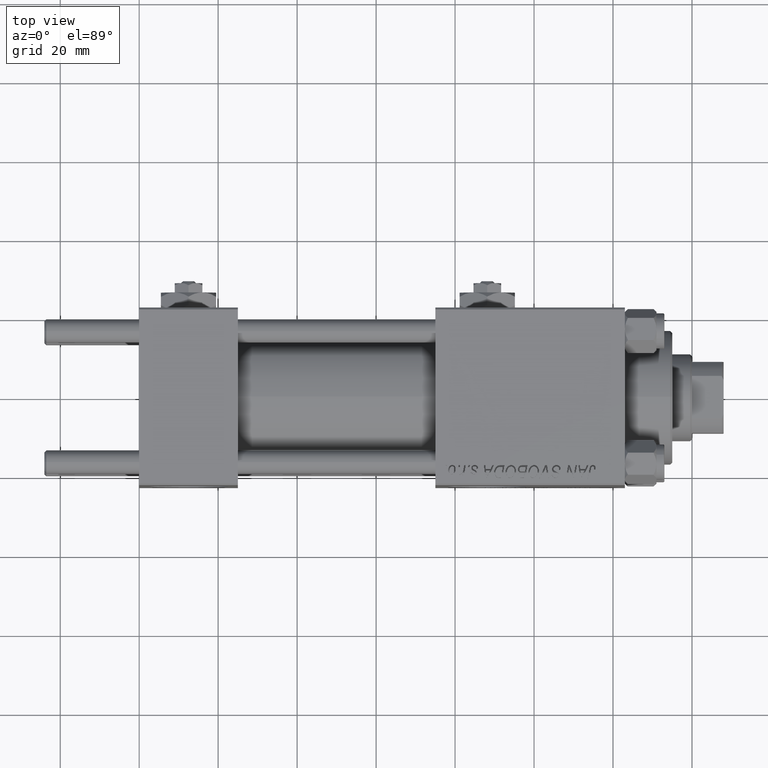
[diagram: clean part render]
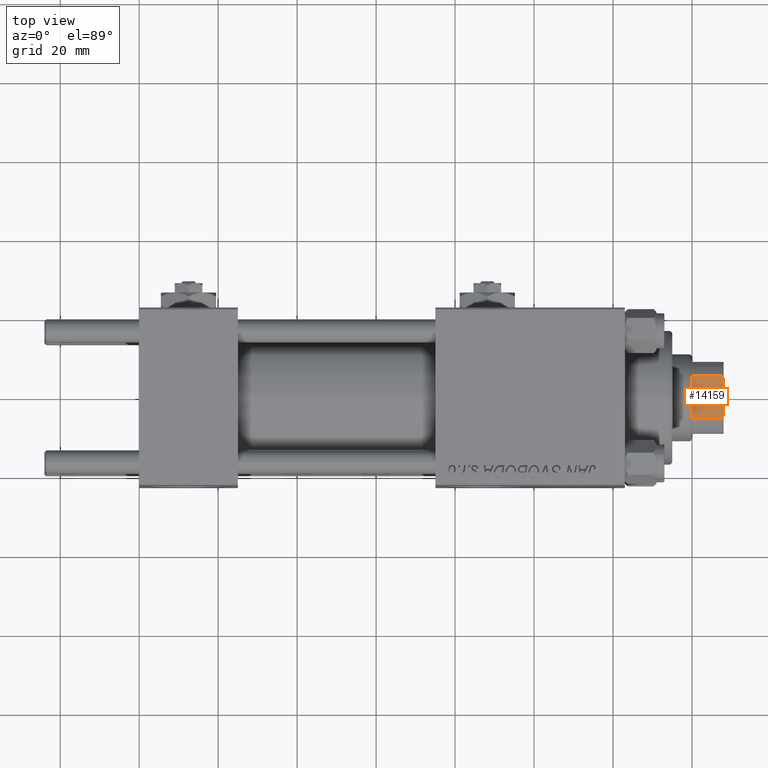
[diagram: same view with one face highlighted and labeled with its STEP entity id]
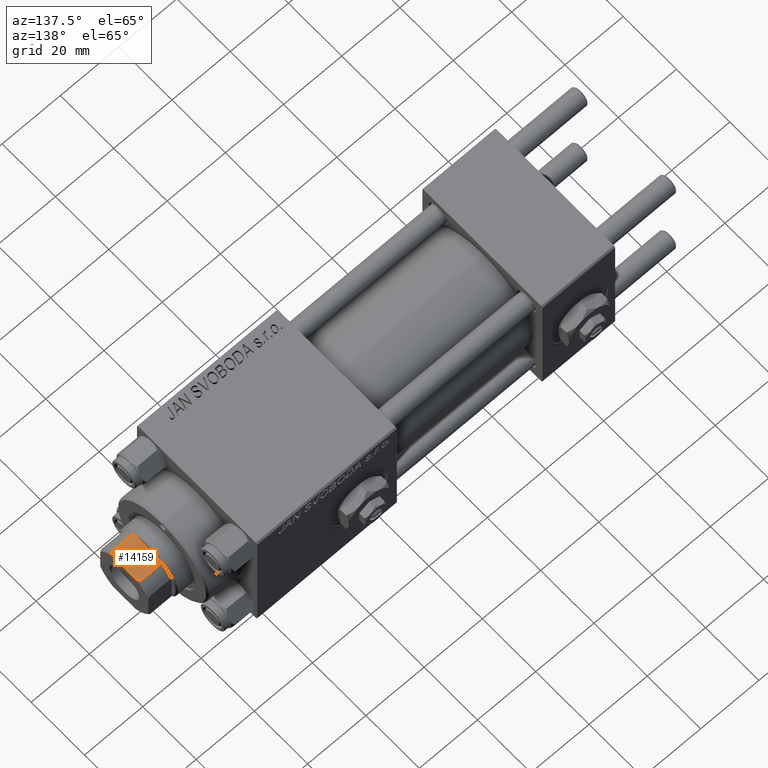
[diagram: same view with one face highlighted and labeled with its STEP entity id]
A machine part, top view. The second image highlights one B-rep face of the part: STEP entity #14159.
A second angle (auxiliary view) of the same face is appended — the face is thin or edge-on in the first view.
In plain terms, the highlighted planar face has unit normal (-0, 0, -1).
Its self-contained STEP definition (entity closure, byte-faithful):
#1874 = CARTESIAN_POINT ( 'NONE',  ( -5.408326913195988794, -8.999999999999998224, 115.0000000000000284 ) ) ;
#3432 = FACE_OUTER_BOUND ( 'NONE', #39912, .T. ) ;
#3558 = CARTESIAN_POINT ( 'NONE',  ( 5.408326913195988794, -8.999999999999998224, 115.0000000000000284 ) ) ;
#4514 = CARTESIAN_POINT ( 'NONE',  ( 4.358898943540667759, -9.000000000000001776, 123.0000000000000000 ) ) ;
#5613 = CARTESIAN_POINT ( 'NONE',  ( -4.358898943540667759, -9.000000000000001776, 123.0000000000000000 ) ) ;
#5825 = VECTOR ( 'NONE', #43112, 1000.000000000000000 ) ;
#5988 = CARTESIAN_POINT ( 'NONE',  ( -5.408326913195988794, -8.999999999999998224, 122.5000000000000000 ) ) ;
#6361 = ORIENTED_EDGE ( 'NONE', *, *, #12108, .F. ) ;
#7642 = DIRECTION ( 'NONE',  ( 0.000000000000000000, -0.000000000000000000, 1.000000000000000000 ) ) ;
#7706 = DIRECTION ( 'NONE',  ( 1.000000000000000000, 0.000000000000000000, 0.000000000000000000 ) ) ;
#9568 = EDGE_CURVE ( 'NONE', #40176, #12343, #10073, .T. ) ;
#10073 = LINE ( 'NONE', #25589, #43547 ) ;
#11038 = LINE ( 'NONE', #27066, #5825 ) ;
#11117 = CARTESIAN_POINT ( 'NONE',  ( -9.000000000000001776, -9.000000000000001776, 115.0000000000000000 ) ) ;
#11395 = CARTESIAN_POINT ( 'NONE',  ( -9.000000000000001776, -9.000000000000001776, 123.0000000000000000 ) ) ;
#12108 = EDGE_CURVE ( 'NONE', #29313, #23044, #11038, .T. ) ;
#12343 = VERTEX_POINT ( 'NONE', #19375 ) ;
#13591 = DIRECTION ( 'NONE',  ( 1.000000000000000000, 0.000000000000000000, 0.000000000000000000 ) ) ;
#13995 = CARTESIAN_POINT ( 'NONE',  ( 4.714305797500245809, -9.000000000000001776, 122.8450817439748448 ) ) ;
#14159 = ADVANCED_FACE ( 'NONE', ( #3432 ), #44187, .F. ) ;
#14592 = ORIENTED_EDGE ( 'NONE', *, *, #50087, .T. ) ;
#16099 = LINE ( 'NONE', #11117, #31214 ) ;
#19375 = CARTESIAN_POINT ( 'NONE',  ( 5.408326913195988794, -8.999999999999998224, 122.5000000000000000 ) ) ;
#20453 = VERTEX_POINT ( 'NONE', #5613 ) ;
#20990 = ORIENTED_EDGE ( 'NONE', *, *, #37612, .T. ) ;
#21022 = AXIS2_PLACEMENT_3D ( 'NONE', #24188, #27876, #7642 ) ;
#21313 = EDGE_CURVE ( 'NONE', #29313, #40176, #16099, .T. ) ;
#22158 = CARTESIAN_POINT ( 'NONE',  ( 4.358898943540667759, -9.000000000000001776, 123.0000000000000000 ) ) ;
#23044 = VERTEX_POINT ( 'NONE', #24268 ) ;
#24188 = CARTESIAN_POINT ( 'NONE',  ( -9.000000000000001776, -9.000000000000001776, 123.0000000000000000 ) ) ;
#24268 = CARTESIAN_POINT ( 'NONE',  ( -5.408326913195988794, -8.999999999999998224, 122.5000000000000000 ) ) ;
#25155 = VERTEX_POINT ( 'NONE', #4514 ) ;
#25589 = CARTESIAN_POINT ( 'NONE',  ( 5.408326913195988794, -8.999999999999998224, -0.001000000000001000089 ) ) ;
#27066 = CARTESIAN_POINT ( 'NONE',  ( -5.408326913195988794, -8.999999999999998224, -0.001000000000001000089 ) ) ;
#27876 = DIRECTION ( 'NONE',  ( 0.000000000000000000, 1.000000000000000000, 0.000000000000000000 ) ) ;
#28479 = B_SPLINE_CURVE_WITH_KNOTS ( 'NONE', 3,
 ( #33971, #33446, #13995, #22158 ),
 .UNSPECIFIED., .F., .F.,
 ( 4, 4 ),
 ( 0.000000000000000000, 0.001162453897363199080 ),
 .UNSPECIFIED. ) ;
#29313 = VERTEX_POINT ( 'NONE', #1874 ) ;
#30776 = EDGE_CURVE ( 'NONE', #20453, #25155, #38988, .T. ) ;
#30861 = CARTESIAN_POINT ( 'NONE',  ( -4.358898943540667759, -9.000000000000001776, 123.0000000000000000 ) ) ;
#31214 = VECTOR ( 'NONE', #7706, 1000.000000000000000 ) ;
#33446 = CARTESIAN_POINT ( 'NONE',  ( 5.063687070142448121, -8.999999999999998224, 122.6775166608139216 ) ) ;
#33971 = CARTESIAN_POINT ( 'NONE',  ( 5.408326913195988794, -8.999999999999998224, 122.5000000000000000 ) ) ;
#36946 = B_SPLINE_CURVE_WITH_KNOTS ( 'NONE', 3,
 ( #30861, #50165, #37794, #5988 ),
 .UNSPECIFIED., .F., .F.,
 ( 4, 4 ),
 ( 0.000000000000000000, 0.001162453897363199080 ),
 .UNSPECIFIED. ) ;
#37612 = EDGE_CURVE ( 'NONE', #20453, #23044, #36946, .T. ) ;
#37794 = CARTESIAN_POINT ( 'NONE',  ( -5.063687070142449009, -9.000000000000001776, 122.6775166608139216 ) ) ;
#38194 = DIRECTION ( 'NONE',  ( -0.000000000000000000, -0.000000000000000000, 1.000000000000000000 ) ) ;
#38988 = LINE ( 'NONE', #11395, #41121 ) ;
#39912 = EDGE_LOOP ( 'NONE', ( #41009, #14592, #49426, #20990, #6361, #49080 ) ) ;
#40176 = VERTEX_POINT ( 'NONE', #3558 ) ;
#41009 = ORIENTED_EDGE ( 'NONE', *, *, #9568, .T. ) ;
#41121 = VECTOR ( 'NONE', #13591, 1000.000000000000000 ) ;
#43112 = DIRECTION ( 'NONE',  ( -0.000000000000000000, -0.000000000000000000, 1.000000000000000000 ) ) ;
#43547 = VECTOR ( 'NONE', #38194, 1000.000000000000000 ) ;
#44187 = PLANE ( 'NONE',  #21022 ) ;
#49080 = ORIENTED_EDGE ( 'NONE', *, *, #21313, .T. ) ;
#49426 = ORIENTED_EDGE ( 'NONE', *, *, #30776, .F. ) ;
#50087 = EDGE_CURVE ( 'NONE', #12343, #25155, #28479, .T. ) ;
#50165 = CARTESIAN_POINT ( 'NONE',  ( -4.714305797500247586, -9.000000000000001776, 122.8450817439748448 ) ) ;